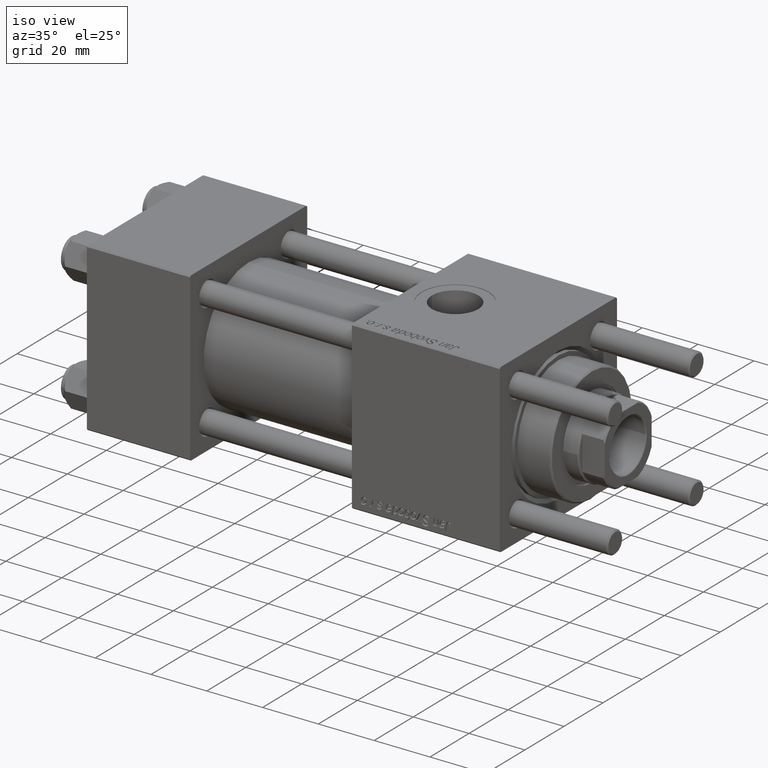
[diagram: clean part render]
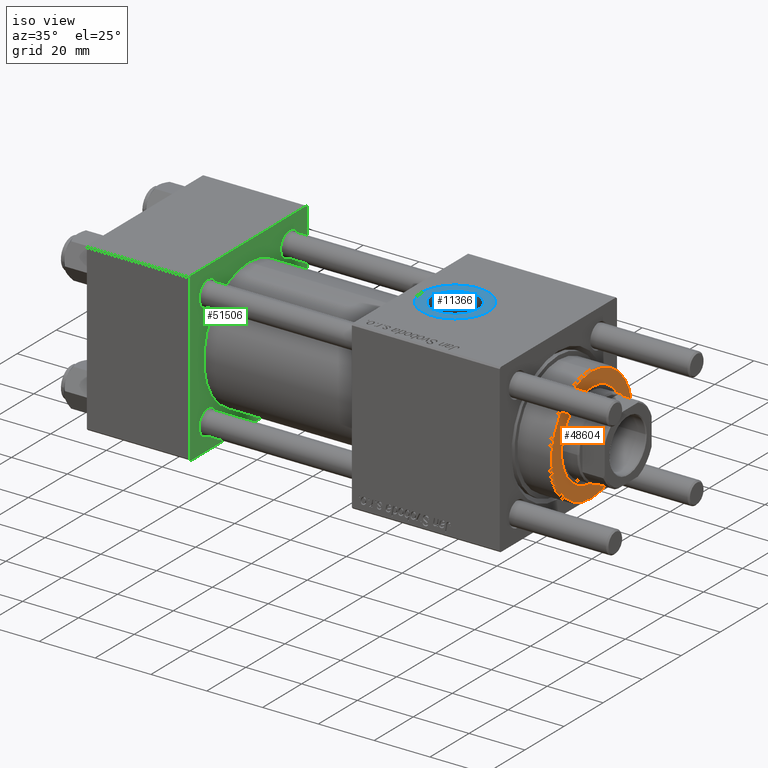
[diagram: same view with three faces highlighted in distinct colors, each labeled with its STEP entity id]
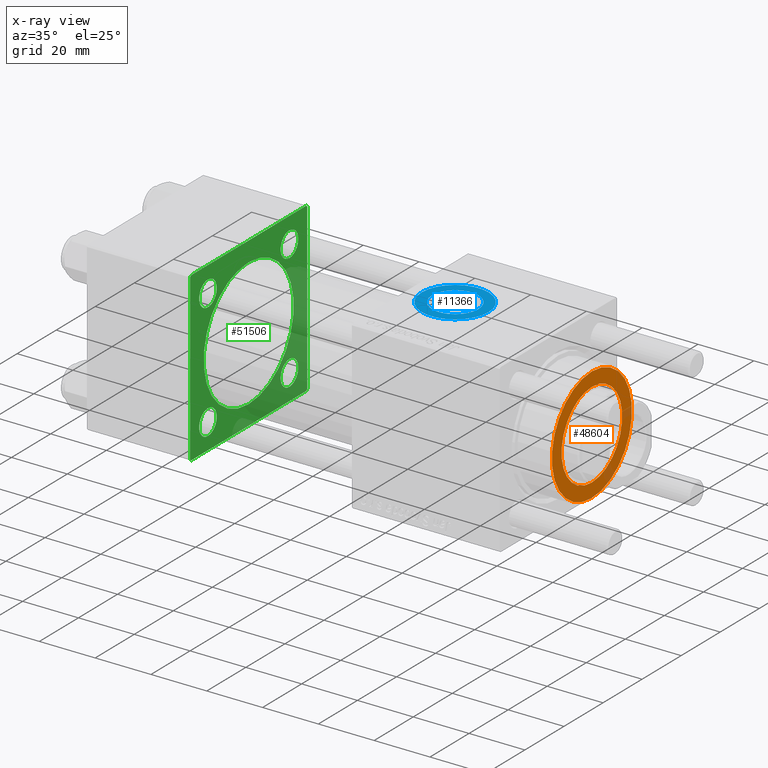
[diagram: x-ray of the same camera — body ghosted, the three highlighted faces saturated]
A machine part, iso view with three faces highlighted in distinct colors.
The next image is the same camera in x-ray (body ghosted, the three faces saturated) — at least one of them is partly hidden behind the body in this view.
Their STEP definitions:

[orange] entity #48604 — the highlighted planar face has unit normal (1, 0, 0).
#3348 = CIRCLE ( 'NONE', #34536, 15.50000000000000000 ) ;
#4913 = CARTESIAN_POINT ( 'NONE',  ( -15.50000000000000000, 1.898202538678397557E-15, 40.70000000000000284 ) ) ;
#6487 = CARTESIAN_POINT ( 'NONE',  ( 0.000000000000000000, 0.000000000000000000, 40.70000000000000284 ) ) ;
#7436 = VERTEX_POINT ( 'NONE', #23577 ) ;
#8202 = DIRECTION ( 'NONE',  ( 1.000000000000000000, 0.000000000000000000, 0.000000000000000000 ) ) ;
#10017 = EDGE_CURVE ( 'NONE', #31848, #42704, #41656, .T. ) ;
#10512 = CARTESIAN_POINT ( 'NONE',  ( 20.49999999999999645, 2.541142108230757480E-15, 40.70000000000000284 ) ) ;
#10986 = EDGE_LOOP ( 'NONE', ( #35577, #39364 ) ) ;
#12156 = AXIS2_PLACEMENT_3D ( 'NONE', #39020, #38719, #29559 ) ;
#13235 = EDGE_CURVE ( 'NONE', #42704, #31848, #32334, .T. ) ;
#13371 = CARTESIAN_POINT ( 'NONE',  ( 0.000000000000000000, 0.000000000000000000, 40.70000000000000284 ) ) ;
#15246 = AXIS2_PLACEMENT_3D ( 'NONE', #6487, #38727, #34302 ) ;
#15912 = EDGE_CURVE ( 'NONE', #7436, #41980, #27776, .T. ) ;
#20673 = FACE_BOUND ( 'NONE', #10986, .T. ) ;
#21221 = DIRECTION ( 'NONE',  ( 0.000000000000000000, 0.000000000000000000, 1.000000000000000000 ) ) ;
#23577 = CARTESIAN_POINT ( 'NONE',  ( 15.50000000000000000, 0.000000000000000000, 40.70000000000000284 ) ) ;
#24532 = FACE_OUTER_BOUND ( 'NONE', #47272, .T. ) ;
#25653 = CARTESIAN_POINT ( 'NONE',  ( -20.49999999999999645, 0.000000000000000000, 40.70000000000000284 ) ) ;
#27776 = CIRCLE ( 'NONE', #49557, 15.50000000000000000 ) ;
#29559 = DIRECTION ( 'NONE',  ( 1.000000000000000000, 0.000000000000000000, -0.000000000000000000 ) ) ;
#30078 = DIRECTION ( 'NONE',  ( 1.000000000000000000, 0.000000000000000000, 0.000000000000000000 ) ) ;
#31848 = VERTEX_POINT ( 'NONE', #10512 ) ;
#32114 = ORIENTED_EDGE ( 'NONE', *, *, #10017, .T. ) ;
#32334 = CIRCLE ( 'NONE', #47420, 20.49999999999999645 ) ;
#33511 = ORIENTED_EDGE ( 'NONE', *, *, #13235, .T. ) ;
#34302 = DIRECTION ( 'NONE',  ( 1.000000000000000000, 0.000000000000000000, 0.000000000000000000 ) ) ;
#34536 = AXIS2_PLACEMENT_3D ( 'NONE', #13371, #40267, #58339 ) ;
#34728 = EDGE_CURVE ( 'NONE', #41980, #7436, #3348, .T. ) ;
#34816 = CARTESIAN_POINT ( 'NONE',  ( 0.000000000000000000, 0.000000000000000000, 40.70000000000000284 ) ) ;
#35577 = ORIENTED_EDGE ( 'NONE', *, *, #15912, .F. ) ;
#38719 = DIRECTION ( 'NONE',  ( 0.000000000000000000, 0.000000000000000000, 1.000000000000000000 ) ) ;
#38727 = DIRECTION ( 'NONE',  ( 0.000000000000000000, 0.000000000000000000, 1.000000000000000000 ) ) ;
#39020 = CARTESIAN_POINT ( 'NONE',  ( 0.000000000000000000, 0.000000000000000000, 40.70000000000000284 ) ) ;
#39364 = ORIENTED_EDGE ( 'NONE', *, *, #34728, .F. ) ;
#40267 = DIRECTION ( 'NONE',  ( 0.000000000000000000, 0.000000000000000000, 1.000000000000000000 ) ) ;
#41656 = CIRCLE ( 'NONE', #15246, 20.49999999999999645 ) ;
#41980 = VERTEX_POINT ( 'NONE', #4913 ) ;
#42704 = VERTEX_POINT ( 'NONE', #25653 ) ;
#43720 = CARTESIAN_POINT ( 'NONE',  ( 0.000000000000000000, 0.000000000000000000, 40.70000000000000284 ) ) ;
#47272 = EDGE_LOOP ( 'NONE', ( #33511, #32114 ) ) ;
#47420 = AXIS2_PLACEMENT_3D ( 'NONE', #34816, #51219, #30078 ) ;
#48604 = ADVANCED_FACE ( 'NONE', ( #20673, #24532 ), #52075, .T. ) ;
#49557 = AXIS2_PLACEMENT_3D ( 'NONE', #43720, #21221, #8202 ) ;
#51219 = DIRECTION ( 'NONE',  ( 0.000000000000000000, 0.000000000000000000, 1.000000000000000000 ) ) ;
#52075 = PLANE ( 'NONE',  #12156 ) ;
#58339 = DIRECTION ( 'NONE',  ( 1.000000000000000000, 0.000000000000000000, 0.000000000000000000 ) ) ;

[blue] entity #11366 — the highlighted planar face has unit normal (0, 0, 1).
#1402 = CARTESIAN_POINT ( 'NONE',  ( 119.3300000000000125, -2.449316168263869821E-15, 29.79999999999999716 ) ) ;
#4493 = CARTESIAN_POINT ( 'NONE',  ( 111.0000000000000000, -3.469446951953613794E-15, 29.79999999999999716 ) ) ;
#4582 = CIRCLE ( 'NONE', #31996, 8.330000000000003624 ) ;
#4648 = CARTESIAN_POINT ( 'NONE',  ( 99.00000000000000000, -1.999870792976792017E-15, 29.79999999999999716 ) ) ;
#5726 = EDGE_CURVE ( 'NONE', #35156, #30732, #44377, .T. ) ;
#6856 = DIRECTION ( 'NONE',  ( 1.000000000000000000, 0.000000000000000000, 0.000000000000000000 ) ) ;
#8420 = ORIENTED_EDGE ( 'NONE', *, *, #47976, .T. ) ;
#8602 = ORIENTED_EDGE ( 'NONE', *, *, #5726, .T. ) ;
#9701 = CARTESIAN_POINT ( 'NONE',  ( 111.0000000000000000, -3.469446951953613794E-15, 29.79999999999999716 ) ) ;
#10015 = CARTESIAN_POINT ( 'NONE',  ( 123.0000000000000000, -3.469446951953613794E-15, 29.79999999999999716 ) ) ;
#10664 = ORIENTED_EDGE ( 'NONE', *, *, #13887, .T. ) ;
#11366 = ADVANCED_FACE ( 'NONE', ( #40571, #22514 ), #18105, .T. ) ;
#13108 = DIRECTION ( 'NONE',  ( 1.000000000000000000, 0.000000000000000000, 0.000000000000000000 ) ) ;
#13291 = EDGE_LOOP ( 'NONE', ( #10664, #8420 ) ) ;
#13887 = EDGE_CURVE ( 'NONE', #42500, #36298, #44594, .T. ) ;
#16345 = CARTESIAN_POINT ( 'NONE',  ( 111.0000000000000000, -3.469446951953613794E-15, 29.79999999999999716 ) ) ;
#18105 = PLANE ( 'NONE',  #50218 ) ;
#19080 = AXIS2_PLACEMENT_3D ( 'NONE', #16345, #37652, #6856 ) ;
#19237 = EDGE_LOOP ( 'NONE', ( #8602, #49803 ) ) ;
#20743 = AXIS2_PLACEMENT_3D ( 'NONE', #31809, #26792, #49880 ) ;
#22083 = EDGE_CURVE ( 'NONE', #30732, #35156, #23743, .T. ) ;
#22514 = FACE_OUTER_BOUND ( 'NONE', #19237, .T. ) ;
#22813 = DIRECTION ( 'NONE',  ( 0.000000000000000000, 0.000000000000000000, 1.000000000000000000 ) ) ;
#23743 = CIRCLE ( 'NONE', #25635, 11.99999999999999645 ) ;
#25635 = AXIS2_PLACEMENT_3D ( 'NONE', #4493, #27275, #13108 ) ;
#26792 = DIRECTION ( 'NONE',  ( 0.000000000000000000, 0.000000000000000000, 1.000000000000000000 ) ) ;
#27275 = DIRECTION ( 'NONE',  ( 0.000000000000000000, 0.000000000000000000, 1.000000000000000000 ) ) ;
#27736 = DIRECTION ( 'NONE',  ( 1.000000000000000000, 0.000000000000000000, 0.000000000000000000 ) ) ;
#30732 = VERTEX_POINT ( 'NONE', #4648 ) ;
#31696 = DIRECTION ( 'NONE',  ( 1.000000000000000000, 0.000000000000000000, -0.000000000000000000 ) ) ;
#31809 = CARTESIAN_POINT ( 'NONE',  ( 111.0000000000000000, -3.469446951953613794E-15, 29.79999999999999716 ) ) ;
#31996 = AXIS2_PLACEMENT_3D ( 'NONE', #9701, #50253, #27736 ) ;
#35156 = VERTEX_POINT ( 'NONE', #10015 ) ;
#36298 = VERTEX_POINT ( 'NONE', #1402 ) ;
#37652 = DIRECTION ( 'NONE',  ( -0.000000000000000000, -0.000000000000000000, -1.000000000000000000 ) ) ;
#40571 = FACE_BOUND ( 'NONE', #13291, .T. ) ;
#42500 = VERTEX_POINT ( 'NONE', #55023 ) ;
#44135 = CARTESIAN_POINT ( 'NONE',  ( 111.0000000000000000, -3.469446951953613794E-15, 29.79999999999999716 ) ) ;
#44377 = CIRCLE ( 'NONE', #20743, 11.99999999999999645 ) ;
#44594 = CIRCLE ( 'NONE', #19080, 8.330000000000003624 ) ;
#47976 = EDGE_CURVE ( 'NONE', #36298, #42500, #4582, .T. ) ;
#49803 = ORIENTED_EDGE ( 'NONE', *, *, #22083, .T. ) ;
#49880 = DIRECTION ( 'NONE',  ( 1.000000000000000000, 0.000000000000000000, 0.000000000000000000 ) ) ;
#50218 = AXIS2_PLACEMENT_3D ( 'NONE', #44135, #22813, #31696 ) ;
#50253 = DIRECTION ( 'NONE',  ( -0.000000000000000000, -0.000000000000000000, -1.000000000000000000 ) ) ;
#55023 = CARTESIAN_POINT ( 'NONE',  ( 102.6700000000000017, -3.469446951953613794E-15, 29.79999999999999716 ) ) ;

[green] entity #51506 — the highlighted planar face has unit normal (-1, 0, 0).
#99 = CIRCLE ( 'NONE', #19033, 4.499999999999990230 ) ;
#255 = LINE ( 'NONE', #54165, #42732 ) ;
#595 = AXIS2_PLACEMENT_3D ( 'NONE', #46132, #40507, #49415 ) ;
#1946 = DIRECTION ( 'NONE',  ( -1.000000000000000000, 0.000000000000000000, -0.000000000000000000 ) ) ;
#2459 = FACE_BOUND ( 'NONE', #41124, .T. ) ;
#2744 = PLANE ( 'NONE',  #28951 ) ;
#2888 = AXIS2_PLACEMENT_3D ( 'NONE', #31634, #53565, #13013 ) ;
#3472 = AXIS2_PLACEMENT_3D ( 'NONE', #34679, #52751, #30233 ) ;
#3767 = DIRECTION ( 'NONE',  ( -1.000000000000000000, 0.000000000000000000, -0.000000000000000000 ) ) ;
#4082 = VERTEX_POINT ( 'NONE', #53641 ) ;
#4434 = VERTEX_POINT ( 'NONE', #8856 ) ;
#5738 = CIRCLE ( 'NONE', #2888, 23.00000000000000000 ) ;
#6050 = CARTESIAN_POINT ( 'NONE',  ( 37.00000000000000000, -29.49999999999998579, 29.99999999999999289 ) ) ;
#6903 = FACE_BOUND ( 'NONE', #25724, .T. ) ;
#6904 = AXIS2_PLACEMENT_3D ( 'NONE', #9742, #9146, #23040 ) ;
#8026 = CIRCLE ( 'NONE', #17531, 4.499999999999990230 ) ;
#8856 = CARTESIAN_POINT ( 'NONE',  ( 37.00000000000000000, 2.146024240737012665E-16, -23.00000000000000000 ) ) ;
#9146 = DIRECTION ( 'NONE',  ( -1.000000000000000000, 0.000000000000000000, -0.000000000000000000 ) ) ;
#9742 = CARTESIAN_POINT ( 'NONE',  ( 37.00000000000000000, -20.84999999999999076, 20.85000000000000497 ) ) ;
#10517 = EDGE_CURVE ( 'NONE', #41109, #33670, #43833, .T. ) ;
#10995 = ORIENTED_EDGE ( 'NONE', *, *, #26242, .T. ) ;
#11797 = DIRECTION ( 'NONE',  ( -1.000000000000000000, 0.000000000000000000, -0.000000000000000000 ) ) ;
#12570 = ORIENTED_EDGE ( 'NONE', *, *, #56466, .F. ) ;
#12667 = CARTESIAN_POINT ( 'NONE',  ( 37.00000000000000000, -20.84999999999999076, -20.85000000000000497 ) ) ;
#13013 = DIRECTION ( 'NONE',  ( 0.000000000000000000, 0.000000000000000000, 1.000000000000000000 ) ) ;
#13406 = ORIENTED_EDGE ( 'NONE', *, *, #36567, .T. ) ;
#13416 = LINE ( 'NONE', #34999, #26298 ) ;
#13503 = ORIENTED_EDGE ( 'NONE', *, *, #51247, .T. ) ;
#13704 = DIRECTION ( 'NONE',  ( 0.000000000000000000, 0.000000000000000000, -1.000000000000000000 ) ) ;
#14315 = AXIS2_PLACEMENT_3D ( 'NONE', #29186, #1946, #28895 ) ;
#14787 = ORIENTED_EDGE ( 'NONE', *, *, #10517, .T. ) ;
#14805 = VERTEX_POINT ( 'NONE', #17607 ) ;
#15123 = EDGE_CURVE ( 'NONE', #53500, #39922, #49493, .T. ) ;
#15397 = AXIS2_PLACEMENT_3D ( 'NONE', #36170, #41754, #55109 ) ;
#15931 = DIRECTION ( 'NONE',  ( -1.000000000000000000, 0.000000000000000000, -0.000000000000000000 ) ) ;
#16389 = FACE_BOUND ( 'NONE', #44830, .T. ) ;
#16850 = EDGE_CURVE ( 'NONE', #20856, #14805, #52099, .T. ) ;
#17193 = EDGE_LOOP ( 'NONE', ( #51659, #10995 ) ) ;
#17261 = EDGE_CURVE ( 'NONE', #4082, #28818, #99, .T. ) ;
#17418 = VECTOR ( 'NONE', #42214, 1000.000000000000114 ) ;
#17531 = AXIS2_PLACEMENT_3D ( 'NONE', #12667, #3767, #34558 ) ;
#17607 = CARTESIAN_POINT ( 'NONE',  ( 37.00000000000000000, -20.84999999999999076, 16.35000000000001208 ) ) ;
#17730 = CARTESIAN_POINT ( 'NONE',  ( 37.00000000000000000, 29.49999999999997868, -30.00000000000000000 ) ) ;
#19033 = AXIS2_PLACEMENT_3D ( 'NONE', #24804, #11797, #42266 ) ;
#19238 = VERTEX_POINT ( 'NONE', #53479 ) ;
#19259 = CARTESIAN_POINT ( 'NONE',  ( 37.00000000000000000, -29.50000000000000000, -30.00000000000000711 ) ) ;
#20421 = EDGE_CURVE ( 'NONE', #34857, #4434, #5738, .T. ) ;
#20856 = VERTEX_POINT ( 'NONE', #49265 ) ;
#21052 = CARTESIAN_POINT ( 'NONE',  ( 37.00000000000000000, 20.84999999999999787, 16.35000000000001208 ) ) ;
#21324 = ORIENTED_EDGE ( 'NONE', *, *, #27839, .T. ) ;
#21516 = ORIENTED_EDGE ( 'NONE', *, *, #55869, .T. ) ;
#21612 = CARTESIAN_POINT ( 'NONE',  ( 37.00000000000000000, -30.00000000000000000, -29.50000000000001776 ) ) ;
#21799 = CARTESIAN_POINT ( 'NONE',  ( 37.00000000000000000, -20.84999999999999076, -16.35000000000001208 ) ) ;
#22031 = CIRCLE ( 'NONE', #6904, 4.499999999999990230 ) ;
#22445 = AXIS2_PLACEMENT_3D ( 'NONE', #33962, #15931, #38988 ) ;
#22885 = CIRCLE ( 'NONE', #15397, 4.499999999999990230 ) ;
#23040 = DIRECTION ( 'NONE',  ( 0.000000000000000000, 0.000000000000000000, 1.000000000000000000 ) ) ;
#23249 = DIRECTION ( 'NONE',  ( -1.000000000000000000, 0.000000000000000000, -0.000000000000000000 ) ) ;
#23387 = CARTESIAN_POINT ( 'NONE',  ( 37.00000000000000000, -2.602085213965210642E-15, 23.00000000000000000 ) ) ;
#23936 = ORIENTED_EDGE ( 'NONE', *, *, #17261, .T. ) ;
#24804 = CARTESIAN_POINT ( 'NONE',  ( 37.00000000000000000, 20.84999999999999787, -20.85000000000000142 ) ) ;
#25724 = EDGE_LOOP ( 'NONE', ( #21516, #37127 ) ) ;
#25803 = EDGE_CURVE ( 'NONE', #39922, #41534, #255, .T. ) ;
#26242 = EDGE_CURVE ( 'NONE', #55100, #19238, #22885, .T. ) ;
#26298 = VECTOR ( 'NONE', #48912, 1000.000000000000000 ) ;
#27041 = ORIENTED_EDGE ( 'NONE', *, *, #31607, .T. ) ;
#27839 = EDGE_CURVE ( 'NONE', #14805, #20856, #22031, .T. ) ;
#28818 = VERTEX_POINT ( 'NONE', #43792 ) ;
#28895 = DIRECTION ( 'NONE',  ( 0.000000000000000000, 0.000000000000000000, 1.000000000000000000 ) ) ;
#28951 = AXIS2_PLACEMENT_3D ( 'NONE', #42714, #34134, #33270 ) ;
#29186 = CARTESIAN_POINT ( 'NONE',  ( 37.00000000000000000, -20.84999999999999076, 20.85000000000000497 ) ) ;
#30233 = DIRECTION ( 'NONE',  ( 0.000000000000000000, 0.000000000000000000, 1.000000000000000000 ) ) ;
#31449 = ORIENTED_EDGE ( 'NONE', *, *, #53712, .F. ) ;
#31607 = EDGE_CURVE ( 'NONE', #40372, #53500, #33920, .T. ) ;
#31634 = CARTESIAN_POINT ( 'NONE',  ( 37.00000000000000000, -2.602085213965210642E-15, 0.000000000000000000 ) ) ;
#32137 = CARTESIAN_POINT ( 'NONE',  ( 37.00000000000000000, 20.84999999999999787, -20.85000000000000142 ) ) ;
#32599 = CARTESIAN_POINT ( 'NONE',  ( 37.00000000000000000, 29.99999999999999289, 30.00000000000000000 ) ) ;
#32688 = CIRCLE ( 'NONE', #56168, 4.499999999999990230 ) ;
#33243 = VERTEX_POINT ( 'NONE', #45727 ) ;
#33270 = DIRECTION ( 'NONE',  ( -0.000000000000000000, 0.000000000000000000, 1.000000000000000000 ) ) ;
#33551 = FACE_OUTER_BOUND ( 'NONE', #34123, .T. ) ;
#33670 = VERTEX_POINT ( 'NONE', #52143 ) ;
#33920 = LINE ( 'NONE', #46389, #17418 ) ;
#33962 = CARTESIAN_POINT ( 'NONE',  ( 37.00000000000000000, 20.84999999999999787, 20.85000000000000142 ) ) ;
#33966 = LINE ( 'NONE', #47596, #58341 ) ;
#34035 = ORIENTED_EDGE ( 'NONE', *, *, #25803, .T. ) ;
#34123 = EDGE_LOOP ( 'NONE', ( #47404, #14787, #12570, #13503, #35027, #27041, #55699, #34035 ) ) ;
#34134 = DIRECTION ( 'NONE',  ( -1.000000000000000000, 0.000000000000000000, -0.000000000000000000 ) ) ;
#34558 = DIRECTION ( 'NONE',  ( 0.000000000000000000, 0.000000000000000000, 1.000000000000000000 ) ) ;
#34671 = DIRECTION ( 'NONE',  ( -0.000000000000000000, 0.7071067811865574537, 0.7071067811865376918 ) ) ;
#34679 = CARTESIAN_POINT ( 'NONE',  ( 37.00000000000000000, -2.602085213965210642E-15, 0.000000000000000000 ) ) ;
#34857 = VERTEX_POINT ( 'NONE', #23387 ) ;
#34999 = CARTESIAN_POINT ( 'NONE',  ( 37.00000000000000000, 29.99999999999999289, -30.00000000000000000 ) ) ;
#35027 = ORIENTED_EDGE ( 'NONE', *, *, #44775, .T. ) ;
#35820 = LINE ( 'NONE', #49448, #45025 ) ;
#36090 = DIRECTION ( 'NONE',  ( 0.000000000000000000, 0.7071067811865474617, -0.7071067811865474617 ) ) ;
#36170 = CARTESIAN_POINT ( 'NONE',  ( 37.00000000000000000, -20.84999999999999076, -20.85000000000000497 ) ) ;
#36567 = EDGE_CURVE ( 'NONE', #28818, #4082, #32688, .T. ) ;
#37127 = ORIENTED_EDGE ( 'NONE', *, *, #42528, .T. ) ;
#38618 = CARTESIAN_POINT ( 'NONE',  ( 37.00000000000000000, 29.49999999999999289, 30.00000000000000000 ) ) ;
#38988 = DIRECTION ( 'NONE',  ( 0.000000000000000000, 0.000000000000000000, 1.000000000000000000 ) ) ;
#39184 = EDGE_CURVE ( 'NONE', #19238, #55100, #8026, .T. ) ;
#39922 = VERTEX_POINT ( 'NONE', #21612 ) ;
#40372 = VERTEX_POINT ( 'NONE', #6050 ) ;
#40507 = DIRECTION ( 'NONE',  ( -1.000000000000000000, 0.000000000000000000, -0.000000000000000000 ) ) ;
#41109 = VERTEX_POINT ( 'NONE', #17730 ) ;
#41124 = EDGE_LOOP ( 'NONE', ( #13406, #23936 ) ) ;
#41304 = ORIENTED_EDGE ( 'NONE', *, *, #16850, .T. ) ;
#41534 = VERTEX_POINT ( 'NONE', #19259 ) ;
#41637 = EDGE_LOOP ( 'NONE', ( #21324, #41304 ) ) ;
#41754 = DIRECTION ( 'NONE',  ( -1.000000000000000000, 0.000000000000000000, -0.000000000000000000 ) ) ;
#42214 = DIRECTION ( 'NONE',  ( -0.000000000000000000, -0.7071067811865474617, -0.7071067811865474617 ) ) ;
#42266 = DIRECTION ( 'NONE',  ( 0.000000000000000000, 0.000000000000000000, 1.000000000000000000 ) ) ;
#42298 = VECTOR ( 'NONE', #13704, 1000.000000000000000 ) ;
#42385 = VERTEX_POINT ( 'NONE', #51234 ) ;
#42528 = EDGE_CURVE ( 'NONE', #42385, #53710, #51649, .T. ) ;
#42664 = CARTESIAN_POINT ( 'NONE',  ( 37.00000000000000000, 29.99999999999999289, -29.50000000000000000 ) ) ;
#42714 = CARTESIAN_POINT ( 'NONE',  ( 37.00000000000000000, 0.000000000000000000, 0.000000000000000000 ) ) ;
#42732 = VECTOR ( 'NONE', #36090, 1000.000000000000114 ) ;
#43792 = CARTESIAN_POINT ( 'NONE',  ( 37.00000000000000000, 20.84999999999999787, -25.34999999999999076 ) ) ;
#43833 = LINE ( 'NONE', #42664, #57729 ) ;
#44457 = DIRECTION ( 'NONE',  ( 0.000000000000000000, 0.000000000000000000, -1.000000000000000000 ) ) ;
#44775 = EDGE_CURVE ( 'NONE', #56041, #40372, #33966, .T. ) ;
#44830 = EDGE_LOOP ( 'NONE', ( #47860, #31449 ) ) ;
#45025 = VECTOR ( 'NONE', #45872, 1000.000000000000114 ) ;
#45609 = VECTOR ( 'NONE', #44457, 1000.000000000000000 ) ;
#45727 = CARTESIAN_POINT ( 'NONE',  ( 37.00000000000000000, 29.99999999999999289, 29.50000000000000000 ) ) ;
#45872 = DIRECTION ( 'NONE',  ( 0.000000000000000000, -0.7071067811865474617, 0.7071067811865474617 ) ) ;
#46132 = CARTESIAN_POINT ( 'NONE',  ( 37.00000000000000000, 20.84999999999999787, 20.85000000000000142 ) ) ;
#46389 = CARTESIAN_POINT ( 'NONE',  ( 37.00000000000000000, -30.00000000000000000, 29.49999999999999289 ) ) ;
#46890 = FACE_BOUND ( 'NONE', #17193, .T. ) ;
#47176 = FACE_BOUND ( 'NONE', #41637, .T. ) ;
#47373 = EDGE_CURVE ( 'NONE', #41109, #41534, #13416, .T. ) ;
#47404 = ORIENTED_EDGE ( 'NONE', *, *, #47373, .F. ) ;
#47596 = CARTESIAN_POINT ( 'NONE',  ( 37.00000000000000000, 29.99999999999999289, 30.00000000000000000 ) ) ;
#47860 = ORIENTED_EDGE ( 'NONE', *, *, #20421, .F. ) ;
#48594 = CARTESIAN_POINT ( 'NONE',  ( 37.00000000000000000, -30.00000000000000000, 29.99999999999999289 ) ) ;
#48912 = DIRECTION ( 'NONE',  ( 0.000000000000000000, -1.000000000000000000, -1.156482317317871725E-16 ) ) ;
#48950 = CIRCLE ( 'NONE', #22445, 4.499999999999990230 ) ;
#49265 = CARTESIAN_POINT ( 'NONE',  ( 37.00000000000000000, -20.84999999999999076, 25.34999999999999432 ) ) ;
#49415 = DIRECTION ( 'NONE',  ( 0.000000000000000000, 0.000000000000000000, 1.000000000000000000 ) ) ;
#49448 = CARTESIAN_POINT ( 'NONE',  ( 37.00000000000000000, 29.49999999999999289, 30.00000000000000000 ) ) ;
#49493 = LINE ( 'NONE', #48594, #45609 ) ;
#49552 = CARTESIAN_POINT ( 'NONE',  ( 37.00000000000000000, -30.00000000000000000, 29.49999999999999289 ) ) ;
#50212 = DIRECTION ( 'NONE',  ( 0.000000000000000000, 0.000000000000000000, 1.000000000000000000 ) ) ;
#51234 = CARTESIAN_POINT ( 'NONE',  ( 37.00000000000000000, 20.84999999999999787, 25.34999999999999076 ) ) ;
#51247 = EDGE_CURVE ( 'NONE', #33243, #56041, #35820, .T. ) ;
#51506 = ADVANCED_FACE ( 'NONE', ( #46890, #2459, #47176, #6903, #16389, #33551 ), #2744, .F. ) ;
#51649 = CIRCLE ( 'NONE', #595, 4.499999999999990230 ) ;
#51659 = ORIENTED_EDGE ( 'NONE', *, *, #39184, .T. ) ;
#52045 = DIRECTION ( 'NONE',  ( 0.000000000000000000, -1.000000000000000000, -1.156482317317871725E-16 ) ) ;
#52099 = CIRCLE ( 'NONE', #14315, 4.499999999999990230 ) ;
#52143 = CARTESIAN_POINT ( 'NONE',  ( 37.00000000000000000, 29.99999999999999289, -29.50000000000000000 ) ) ;
#52751 = DIRECTION ( 'NONE',  ( 1.000000000000000000, -0.000000000000000000, 0.000000000000000000 ) ) ;
#53479 = CARTESIAN_POINT ( 'NONE',  ( 37.00000000000000000, -20.84999999999999076, -25.34999999999999432 ) ) ;
#53500 = VERTEX_POINT ( 'NONE', #49552 ) ;
#53565 = DIRECTION ( 'NONE',  ( 1.000000000000000000, -0.000000000000000000, 0.000000000000000000 ) ) ;
#53641 = CARTESIAN_POINT ( 'NONE',  ( 37.00000000000000000, 20.84999999999999787, -16.35000000000001208 ) ) ;
#53710 = VERTEX_POINT ( 'NONE', #21052 ) ;
#53712 = EDGE_CURVE ( 'NONE', #4434, #34857, #54554, .T. ) ;
#54165 = CARTESIAN_POINT ( 'NONE',  ( 37.00000000000000000, -29.50000000000001066, -30.00000000000000711 ) ) ;
#54244 = LINE ( 'NONE', #32599, #42298 ) ;
#54554 = CIRCLE ( 'NONE', #3472, 23.00000000000000000 ) ;
#55100 = VERTEX_POINT ( 'NONE', #21799 ) ;
#55109 = DIRECTION ( 'NONE',  ( 0.000000000000000000, 0.000000000000000000, 1.000000000000000000 ) ) ;
#55699 = ORIENTED_EDGE ( 'NONE', *, *, #15123, .T. ) ;
#55869 = EDGE_CURVE ( 'NONE', #53710, #42385, #48950, .T. ) ;
#56041 = VERTEX_POINT ( 'NONE', #38618 ) ;
#56168 = AXIS2_PLACEMENT_3D ( 'NONE', #32137, #23249, #50212 ) ;
#56466 = EDGE_CURVE ( 'NONE', #33243, #33670, #54244, .T. ) ;
#57729 = VECTOR ( 'NONE', #34671, 999.9999999999998863 ) ;
#58341 = VECTOR ( 'NONE', #52045, 1000.000000000000000 ) ;